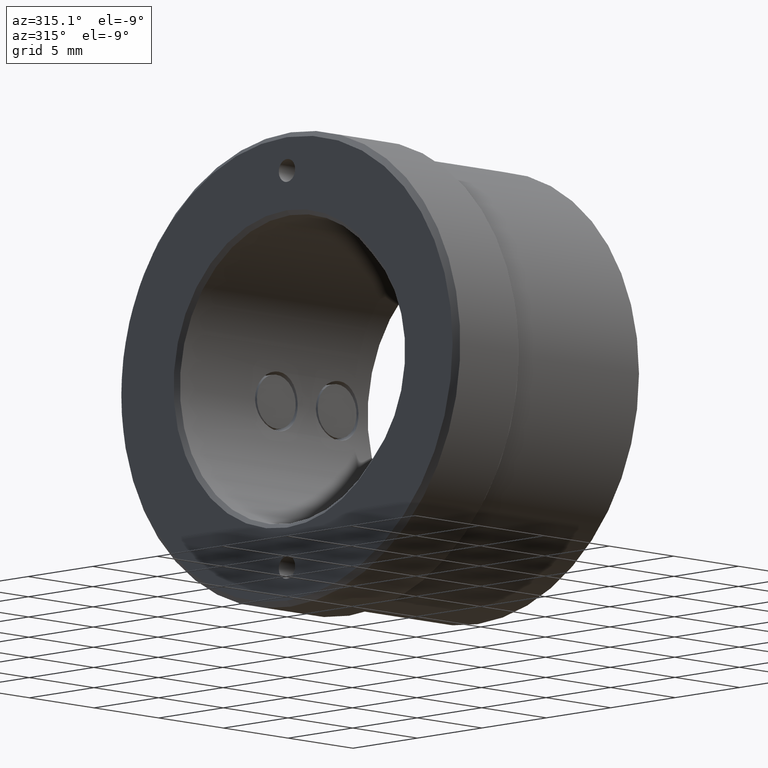
[diagram: clean part render]
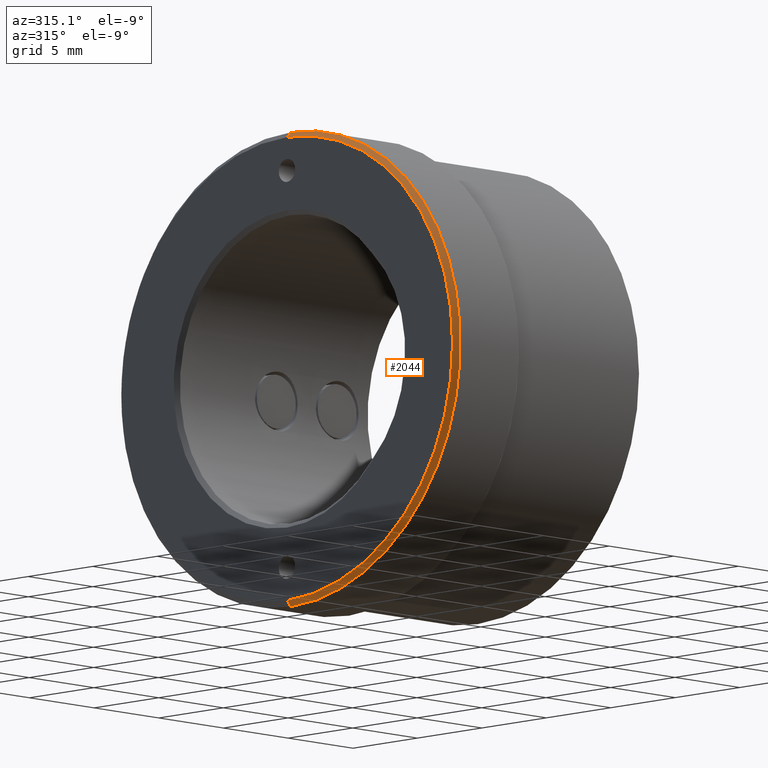
[diagram: same view with one face highlighted and labeled with its STEP entity id]
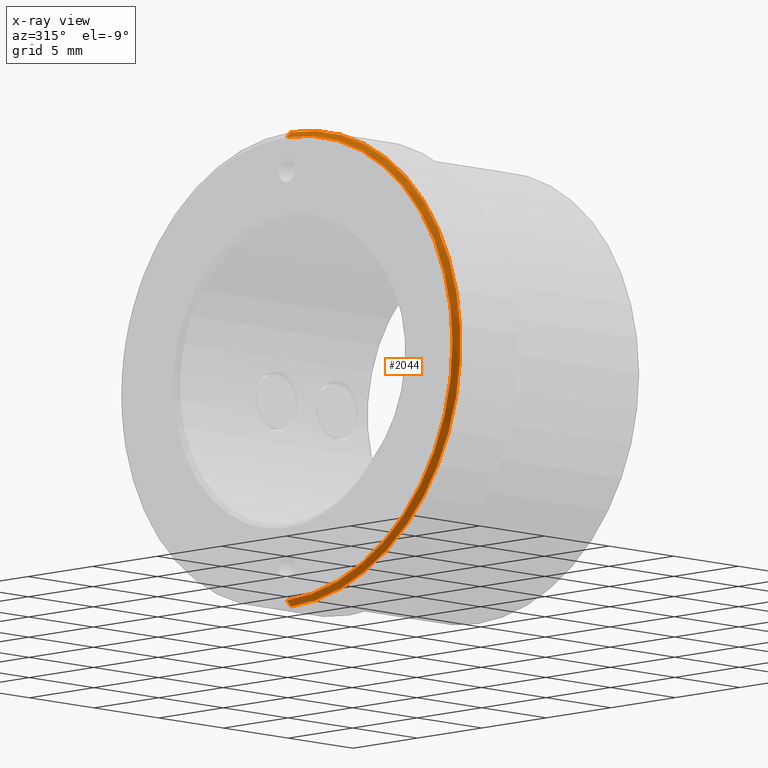
[diagram: x-ray of the same camera — body ghosted, the highlighted face saturated]
A machine part, auxiliary view. The second image highlights one B-rep face of the part: STEP entity #2044.
The next image is the same camera in x-ray: the body ghosted, the highlighted face saturated — about 0% of this face is hidden behind the body in this view.
In plain terms, the highlighted conical surface has half-angle 45 deg.
Its self-contained STEP definition (entity closure, byte-faithful):
#109 = CONICAL_SURFACE ( 'NONE', #1074, 13.14499999999999957, 0.7853981633974456145 ) ;
#210 = DIRECTION ( 'NONE',  ( 1.000000000000000000, -0.000000000000000000, -0.000000000000000000 ) ) ;
#330 = LINE ( 'NONE', #1744, #705 ) ;
#332 = ORIENTED_EDGE ( 'NONE', *, *, #1572, .F. ) ;
#382 = CIRCLE ( 'NONE', #2975, 13.14499999999999957 ) ;
#444 = ORIENTED_EDGE ( 'NONE', *, *, #1995, .F. ) ;
#679 = CARTESIAN_POINT ( 'NONE',  ( 0.2999999999999981570, 0.000000000000000000, 13.14499999999999957 ) ) ;
#698 = DIRECTION ( 'NONE',  ( -1.000000000000000000, -0.000000000000000000, -0.000000000000000000 ) ) ;
#705 = VECTOR ( 'NONE', #3160, 1000.000000000000114 ) ;
#951 = EDGE_CURVE ( 'NONE', #4553, #2714, #4454, .T. ) ;
#957 = CARTESIAN_POINT ( 'NONE',  ( 0.2999999999999981570, 0.000000000000000000, 0.000000000000000000 ) ) ;
#1074 = AXIS2_PLACEMENT_3D ( 'NONE', #4514, #3091, #2392 ) ;
#1137 = CARTESIAN_POINT ( 'NONE',  ( 0.2999999999999981570, 1.609798217479195936E-15, -13.14499999999999957 ) ) ;
#1182 = ORIENTED_EDGE ( 'NONE', *, *, #951, .F. ) ;
#1306 = LINE ( 'NONE', #4141, #3785 ) ;
#1393 = CARTESIAN_POINT ( 'NONE',  ( 0.000000000000000000, 0.000000000000000000, 0.000000000000000000 ) ) ;
#1572 = EDGE_CURVE ( 'NONE', #2714, #4483, #1306, .T. ) ;
#1680 = FACE_OUTER_BOUND ( 'NONE', #4489, .T. ) ;
#1744 = CARTESIAN_POINT ( 'NONE',  ( 0.2999999999999981570, 0.000000000000000000, -13.14499999999999957 ) ) ;
#1749 = CARTESIAN_POINT ( 'NONE',  ( 0.000000000000000000, 0.000000000000000000, -12.84500000000000419 ) ) ;
#1995 = EDGE_CURVE ( 'NONE', #4483, #3337, #382, .T. ) ;
#2028 = DIRECTION ( 'NONE',  ( 0.7071067811865495711, 8.659560562354909439E-17, 0.7071067811865455743 ) ) ;
#2044 = ADVANCED_FACE ( 'NONE', ( #1680 ), #109, .T. ) ;
#2249 = EDGE_CURVE ( 'NONE', #4553, #3337, #330, .T. ) ;
#2369 = DIRECTION ( 'NONE',  ( 0.000000000000000000, 0.000000000000000000, -1.000000000000000000 ) ) ;
#2392 = DIRECTION ( 'NONE',  ( 0.000000000000000000, 0.000000000000000000, -1.000000000000000000 ) ) ;
#2435 = ORIENTED_EDGE ( 'NONE', *, *, #2249, .T. ) ;
#2523 = AXIS2_PLACEMENT_3D ( 'NONE', #1393, #698, #2792 ) ;
#2714 = VERTEX_POINT ( 'NONE', #3494 ) ;
#2792 = DIRECTION ( 'NONE',  ( 0.000000000000000000, 0.000000000000000000, -1.000000000000000000 ) ) ;
#2975 = AXIS2_PLACEMENT_3D ( 'NONE', #957, #210, #2369 ) ;
#3091 = DIRECTION ( 'NONE',  ( 1.000000000000000000, -0.000000000000000000, -0.000000000000000000 ) ) ;
#3160 = DIRECTION ( 'NONE',  ( 0.7071067811865495711, 0.000000000000000000, -0.7071067811865455743 ) ) ;
#3337 = VERTEX_POINT ( 'NONE', #1137 ) ;
#3494 = CARTESIAN_POINT ( 'NONE',  ( 0.000000000000000000, 1.591428515491985704E-15, 12.84500000000000419 ) ) ;
#3785 = VECTOR ( 'NONE', #2028, 1000.000000000000114 ) ;
#4141 = CARTESIAN_POINT ( 'NONE',  ( 0.2999999999999981570, 1.609798217479195936E-15, 13.14499999999999957 ) ) ;
#4454 = CIRCLE ( 'NONE', #2523, 12.84500000000000419 ) ;
#4483 = VERTEX_POINT ( 'NONE', #679 ) ;
#4489 = EDGE_LOOP ( 'NONE', ( #332, #1182, #2435, #444 ) ) ;
#4514 = CARTESIAN_POINT ( 'NONE',  ( 0.2999999999999981570, 0.000000000000000000, 0.000000000000000000 ) ) ;
#4553 = VERTEX_POINT ( 'NONE', #1749 ) ;